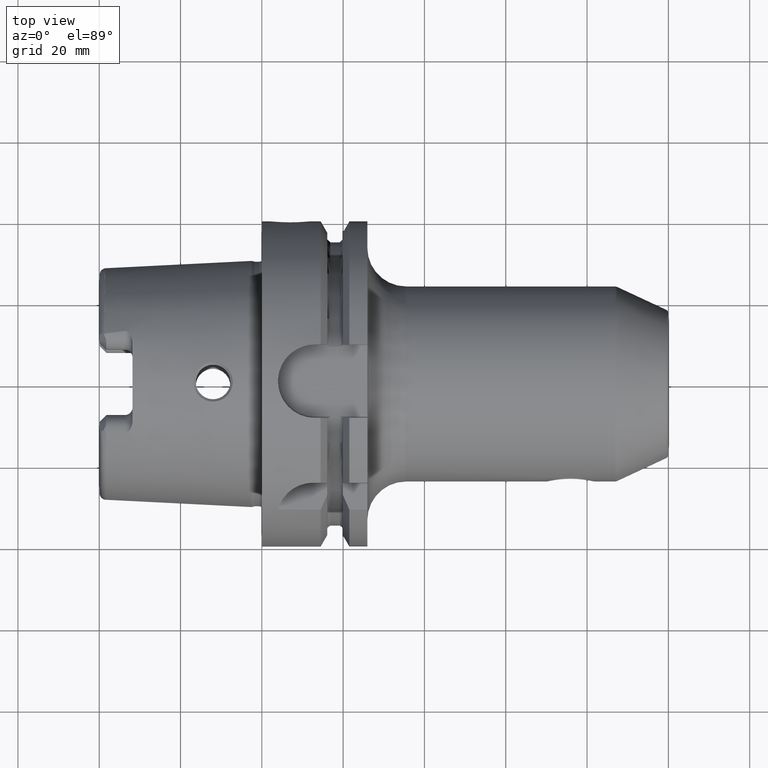
[diagram: clean part render]
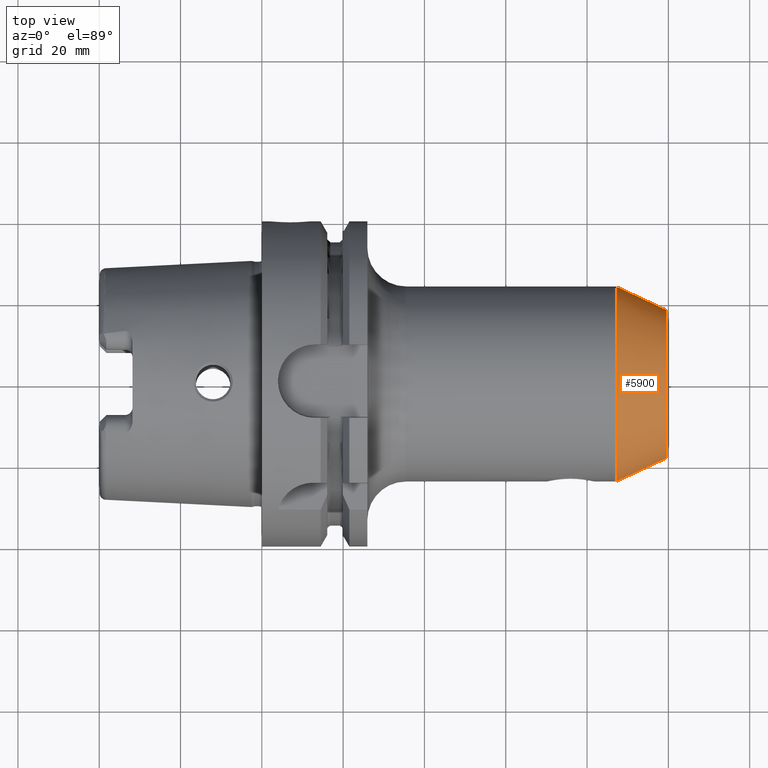
[diagram: same view with one face highlighted and labeled with its STEP entity id]
A machine part, top view. The second image highlights one B-rep face of the part: STEP entity #5900.
In plain terms, the highlighted conical surface has half-angle 25 deg.
Its self-contained STEP definition (entity closure, byte-faithful):
#2268=DIRECTION('',(-9.063077870367E-1,4.226182617407E-1,1.200746775246E-13));
#2269=VECTOR('',#2268,1.333844457546E1);
#2270=CARTESIAN_POINT('',(9.942261826174E1,1.826923752623E1,
-1.429709331986E-13));
#2271=LINE('',#2270,#2269);
#2277=DIRECTION('',(-9.063077870367E-1,-4.226182617407E-1,-1.195895081051E-13));
#2278=VECTOR('',#2277,1.333844457546E1);
#2279=CARTESIAN_POINT('',(9.942261826174E1,-1.826923752623E1,
1.343000321435E-13));
#2280=LINE('',#2279,#2278);
#2281=CARTESIAN_POINT('',(9.942261826174E1,0.E0,0.E0));
#2282=DIRECTION('',(-1.E0,0.E0,0.E0));
#2283=DIRECTION('',(0.E0,-1.E0,0.E0));
#2284=AXIS2_PLACEMENT_3D('',#2281,#2282,#2283);
#2286=CARTESIAN_POINT('',(8.733388207604E1,0.E0,0.E0));
#2287=DIRECTION('',(-1.E0,0.E0,0.E0));
#2288=DIRECTION('',(0.E0,-1.E0,0.E0));
#2289=AXIS2_PLACEMENT_3D('',#2286,#2287,#2288);
#3433=CARTESIAN_POINT('',(9.942261826174E1,1.826923752623E1,0.E0));
#3434=CARTESIAN_POINT('',(9.942261826174E1,-1.826923752623E1,0.E0));
#3435=VERTEX_POINT('',#3433);
#3436=VERTEX_POINT('',#3434);
#3445=CARTESIAN_POINT('',(8.733388207604E1,2.390630778704E1,0.E0));
#3446=CARTESIAN_POINT('',(8.733388207604E1,-2.390630778704E1,0.E0));
#3447=VERTEX_POINT('',#3445);
#3448=VERTEX_POINT('',#3446);
#5887=CARTESIAN_POINT('',(9.337825016889E1,0.E0,0.E0));
#5888=DIRECTION('',(-1.E0,0.E0,0.E0));
#5889=DIRECTION('',(0.E0,1.E0,0.E0));
#5890=AXIS2_PLACEMENT_3D('',#5887,#5888,#5889);
#5891=CONICAL_SURFACE('',#5890,2.108777265663E1,2.5E1);
#5893=ORIENTED_EDGE('',*,*,#5892,.F.);
#5894=ORIENTED_EDGE('',*,*,#5882,.T.);
#5896=ORIENTED_EDGE('',*,*,#5895,.T.);
#5897=ORIENTED_EDGE('',*,*,#5878,.F.);
#5898=EDGE_LOOP('',(#5893,#5894,#5896,#5897));
#5899=FACE_OUTER_BOUND('',#5898,.F.);
#5900=ADVANCED_FACE('',(#5899),#5891,.T.);
#2285=CIRCLE('',#2284,1.826923752623E1);
#2290=CIRCLE('',#2289,2.390630778704E1);
#5878=EDGE_CURVE('',#3435,#3447,#2271,.T.);
#5882=EDGE_CURVE('',#3436,#3448,#2280,.T.);
#5892=EDGE_CURVE('',#3436,#3435,#2285,.T.);
#5895=EDGE_CURVE('',#3448,#3447,#2290,.T.);